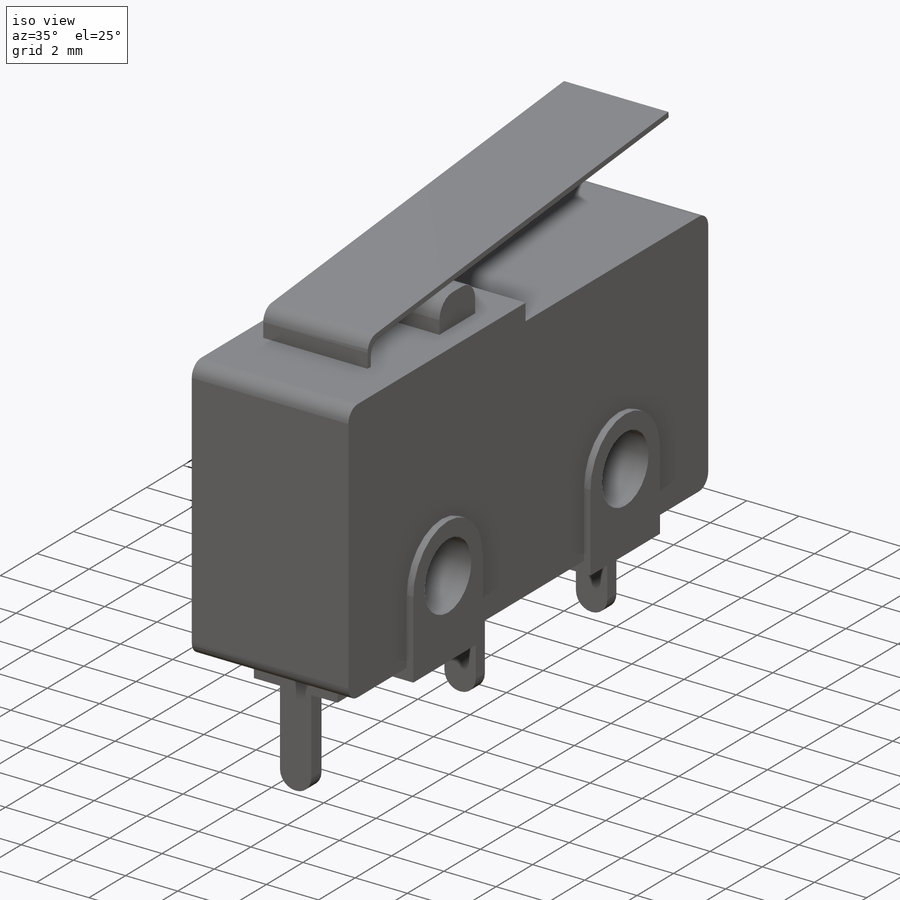
[diagram: iso view]
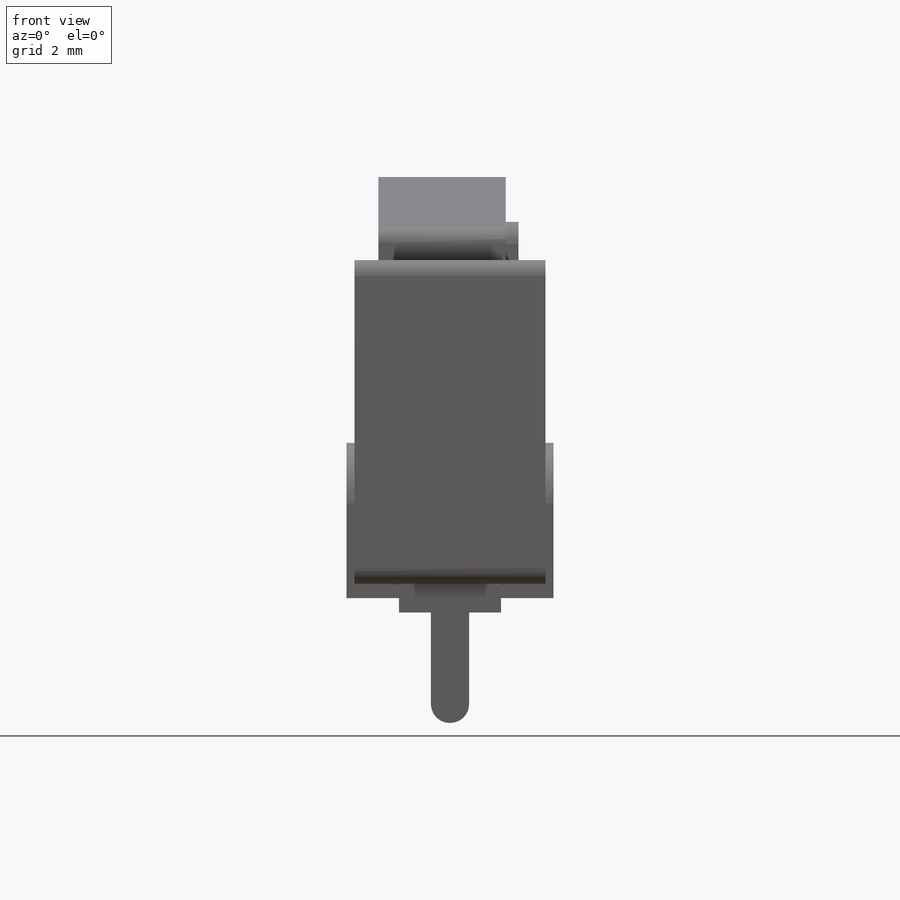
[diagram: front view]
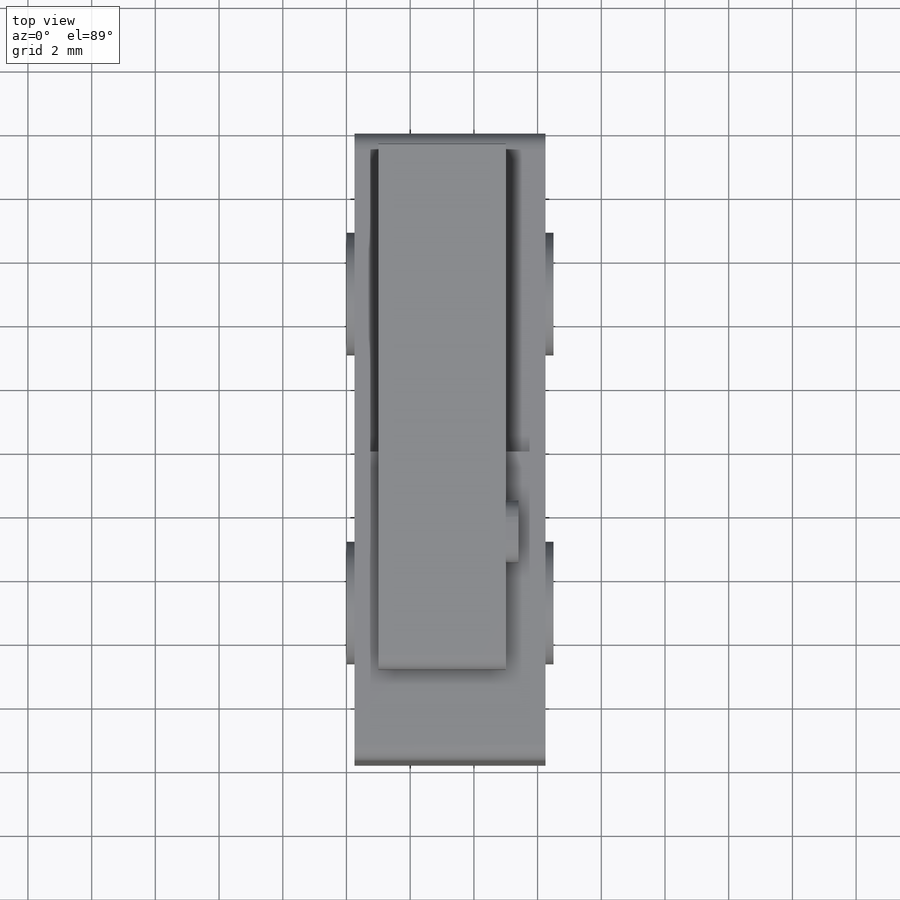
[diagram: top view]
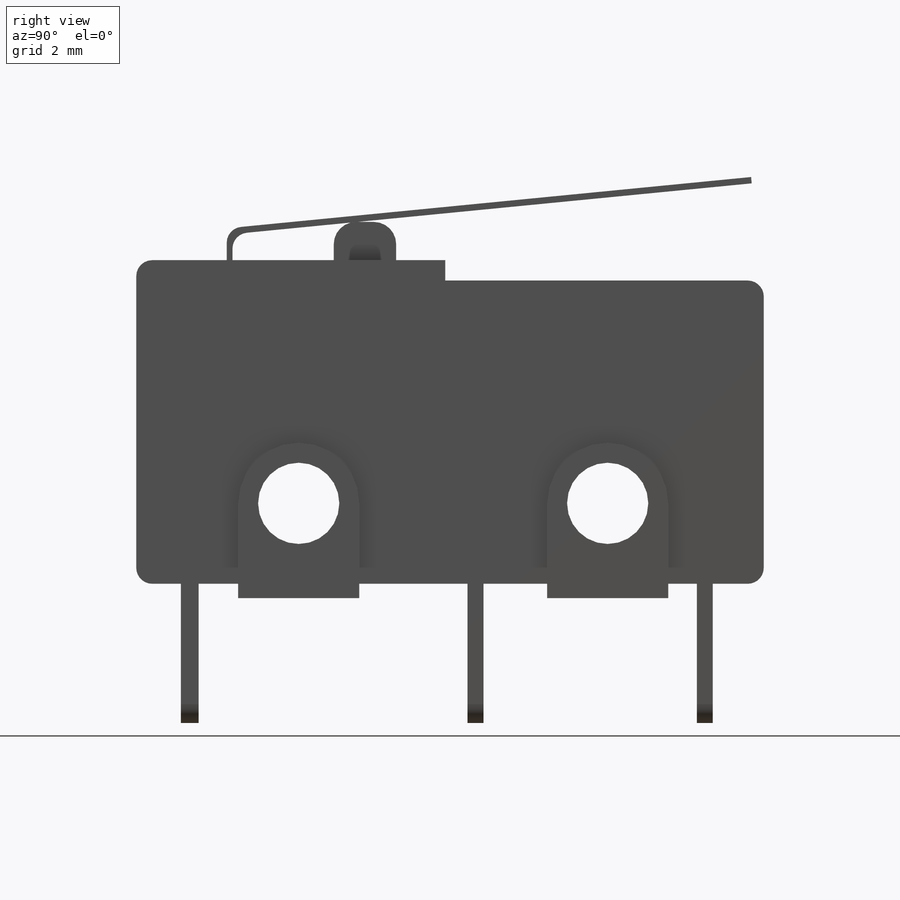
[diagram: right view]
SOLIDWORKS PART (.sldprt)
format: sldprt  version: not decoded by parser v0  size: 441,856 bytes
history: native  units: mm
features: sketch x7, extrude x5, fillet x3, cut_extrude x2, material x1 (+12 scaffold rows collapsed)
feature tree (30):
  scaffold x12  (default folders/planes/origin — collapsed)
  material  "Материал <не указан>"
  sketch  "Sketch1"  dims[c1.D11=0.5mm c1.D12=2.55mm c1.D13=2.55mm c1.D1=9.52mm c1.D2=10.16mm c1.D3=9.52mm c1.D4=9.52mm c1.D5=9.52mm c2.D3=3.8mm c2.D4=3.8mm c2.D5=0.45mm c2.D6=0.45mm c2.D7=19.7mm c2.D8=3.2mm c2.D9=9.7mm c2.D10=5.9mm c2.D14=1.7mm c2.D15=1.7mm]
  extrude  "Boss-Extrude1"  Depth=6.5mm
  sketch  "Sketch2"  dims[D1=1.96mm D2=3.53mm D3=1.1mm D4=6.2mm]
  extrude  "Boss-Extrude2"  Depth=1.2mm
  fillet  "Fillet1"  Radius=0.7mm
  sketch  "Sketch3"  dims[D1=3.2mm D2=0.56mm D3=3.2mm D4=0.5mm D5=3.2mm D6=0.5mm D7=1.6mm D8=1.4mm D9=6.7mm]
  extrude  "Boss-Extrude3"  Depth=0.9mm
  sketch  "Sketch4"  dims[D1=1.2mm D2=1.2mm D3=1.2mm]
  extrude  "Boss-Extrude4"  Depth=3.47mm
  fillet  "Fillet2"  Radius=0.59mm
  sketch  "Эскиз1"  dims[c1.D1=~1.472524mm c1.D2=4.79mm c1.D3=2.0mm c2.D1=2.84mm c2.D4=1.19mm c2.D5=19.44mm c2.D2=3.25mm c2.D3=1.0mm c3.D4=0.2mm]
  extrude  "Бобышка-Вытянуть1"  Depth=4mm
  fillet  "Скругление1"  Radius=0.5mm
  sketch  "Sketch6"  dims[D1=0.0mm]
  cut_extrude  "Extrude1"  Depth=0.25mm
  cut_extrude  "Extrude2"  [1 undecoded]
  sketch  "Sketch"  dims[D1=0.25mm]
decode coverage: 16 of 17 modeling features carry decoded parameters
note: ~ marks probable driven/reference dimensions
note: 1 parameter value undecoded
note: suppression state not decoded; provenance and decode notes live in map.json
